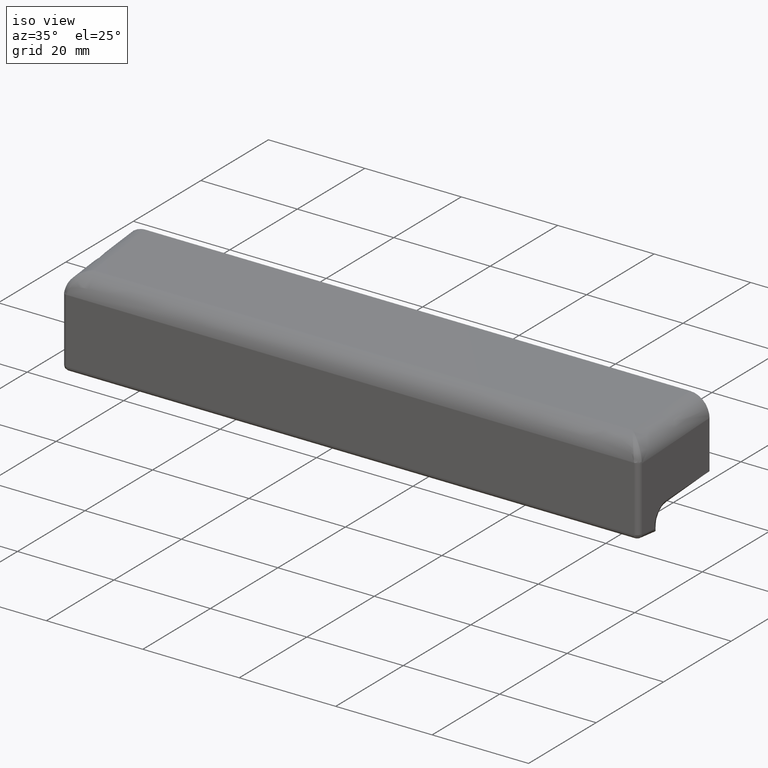
[diagram: clean part render]
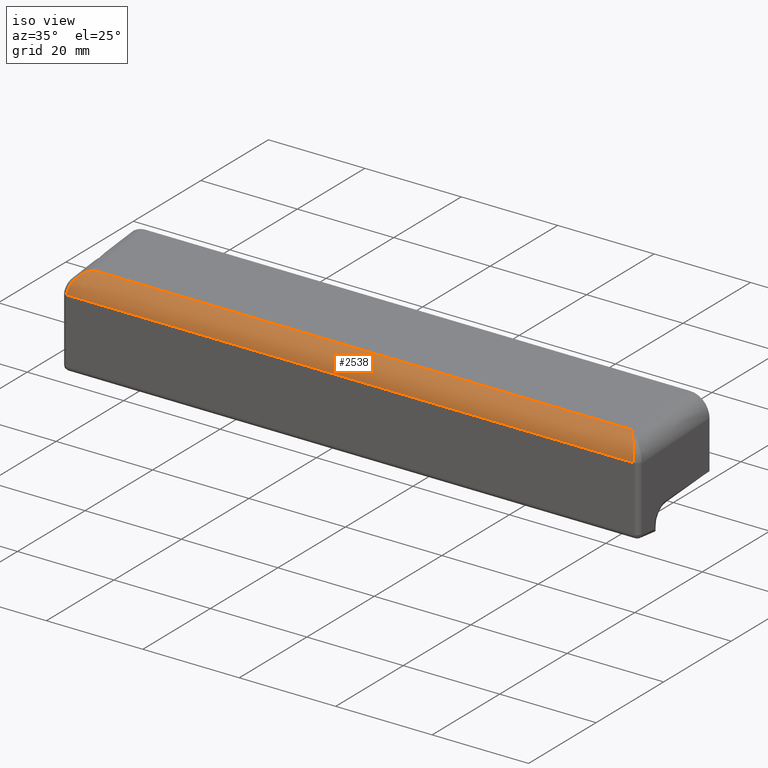
[diagram: same view with one face highlighted and labeled with its STEP entity id]
A machine part, iso view. The second image highlights one B-rep face of the part: STEP entity #2538.
In plain terms, the highlighted face is a freeform B-spline surface patch.
Its self-contained STEP definition (entity closure, byte-faithful):
#1540=CARTESIAN_POINT('',(-108.938829812107800,-16.299159799049850,6.277562990073291));
#1541=VERTEX_POINT('',#1540);
#1542=CARTESIAN_POINT('',(-111.828064793165000,-20.0,2.288765750975720));
#1543=VERTEX_POINT('',#1542);
#1544=CARTESIAN_POINT('',(-108.938829812107800,-16.299159799049850,6.277562990073291));
#1545=CARTESIAN_POINT('',(-111.627015507939480,-19.999999999999414,6.000000176827278));
#1546=CARTESIAN_POINT('',(-111.828064793165000,-20.0,2.288765750975720));
#1554=(BOUNDED_CURVE()B_SPLINE_CURVE(2,(#1544,#1545,#1546),.UNSPECIFIED.,.F.,.U.)CURVE()GEOMETRIC_REPRESENTATION_ITEM()QUASI_UNIFORM_CURVE()RATIONAL_B_SPLINE_CURVE((1.0,0.733072265934181,1.0))REPRESENTATION_ITEM(''));
#1555=EDGE_CURVE('',#1541,#1543,#1554,.T.);
#1979=CARTESIAN_POINT('',(5.828064793164811,-20.0,2.288765750975720));
#1980=VERTEX_POINT('',#1979);
#2068=CARTESIAN_POINT('',(2.938829812107570,-16.299159799049850,6.277562990073291));
#2069=VERTEX_POINT('',#2068);
#2083=CARTESIAN_POINT('',(5.828064793164820,-20.0,2.288765750975779));
#2084=CARTESIAN_POINT('',(5.627015507163439,-19.999999999999950,6.000000191154147));
#2085=CARTESIAN_POINT('',(2.938829812107570,-16.299159799049850,6.277562990073291));
#2093=(BOUNDED_CURVE()B_SPLINE_CURVE(2,(#2083,#2084,#2085),.UNSPECIFIED.,.F.,.U.)CURVE()GEOMETRIC_REPRESENTATION_ITEM()QUASI_UNIFORM_CURVE()RATIONAL_B_SPLINE_CURVE((1.0,0.733072264624977,1.0))REPRESENTATION_ITEM(''));
#2094=EDGE_CURVE('',#1980,#2069,#2093,.T.);
#2510=CARTESIAN_POINT('',(8.769468032823058,-16.174477549461329,6.284958637303140));
#2511=CARTESIAN_POINT('',(-114.843003113814700,-16.174477549461351,6.284958637303140));
#2512=CARTESIAN_POINT('',(8.769468032823061,-20.267921618733887,6.106235009495477));
#2513=CARTESIAN_POINT('',(-114.843003113814720,-20.267921618733901,6.106235009495457));
#2514=CARTESIAN_POINT('',(8.769468032823063,-19.990843556534784,2.018270451081677));
#2515=CARTESIAN_POINT('',(-114.843003113814750,-19.990843556534795,2.018270451081650));
#2523=(BOUNDED_SURFACE()B_SPLINE_SURFACE(1,2,((#2510,#2512,#2514),(#2511,#2513,#2515)),.UNSPECIFIED.,.F.,.F.,.U.)B_SPLINE_SURFACE_WITH_KNOTS((2,2),(3,3),(0.0,123.612471146637800),(0.0,6.740358124763850),.UNSPECIFIED.)GEOMETRIC_REPRESENTATION_ITEM()RATIONAL_B_SPLINE_SURFACE(((1.0,0.696958908797143,0.995433589259390),(1.0,0.696958908797143,0.995433589259390)))REPRESENTATION_ITEM('')SURFACE());
#2524=CARTESIAN_POINT('',(5.828064793164811,-20.0,2.288765750975720));
#2525=CARTESIAN_POINT('',(-111.828064793165000,-20.0,2.288765750975720));
#2526=QUASI_UNIFORM_CURVE('',1,(#2524,#2525),.UNSPECIFIED.,.F.,.U.);
#2527=EDGE_CURVE('',#1980,#1543,#2526,.T.);
#2528=ORIENTED_EDGE('',*,*,#2527,.F.);
#2529=ORIENTED_EDGE('',*,*,#2094,.T.);
#2530=CARTESIAN_POINT('',(-108.938829812107800,-16.299159799049850,6.277562990073291));
#2531=CARTESIAN_POINT('',(2.938829812107570,-16.299159799049850,6.277562990073291));
#2532=QUASI_UNIFORM_CURVE('',1,(#2530,#2531),.UNSPECIFIED.,.F.,.U.);
#2533=EDGE_CURVE('',#1541,#2069,#2532,.T.);
#2534=ORIENTED_EDGE('',*,*,#2533,.F.);
#2535=ORIENTED_EDGE('',*,*,#1555,.T.);
#2536=EDGE_LOOP('',(#2528,#2529,#2534,#2535));
#2537=FACE_OUTER_BOUND('',#2536,.T.);
#2538=ADVANCED_FACE('',(#2537),#2523,.T.);